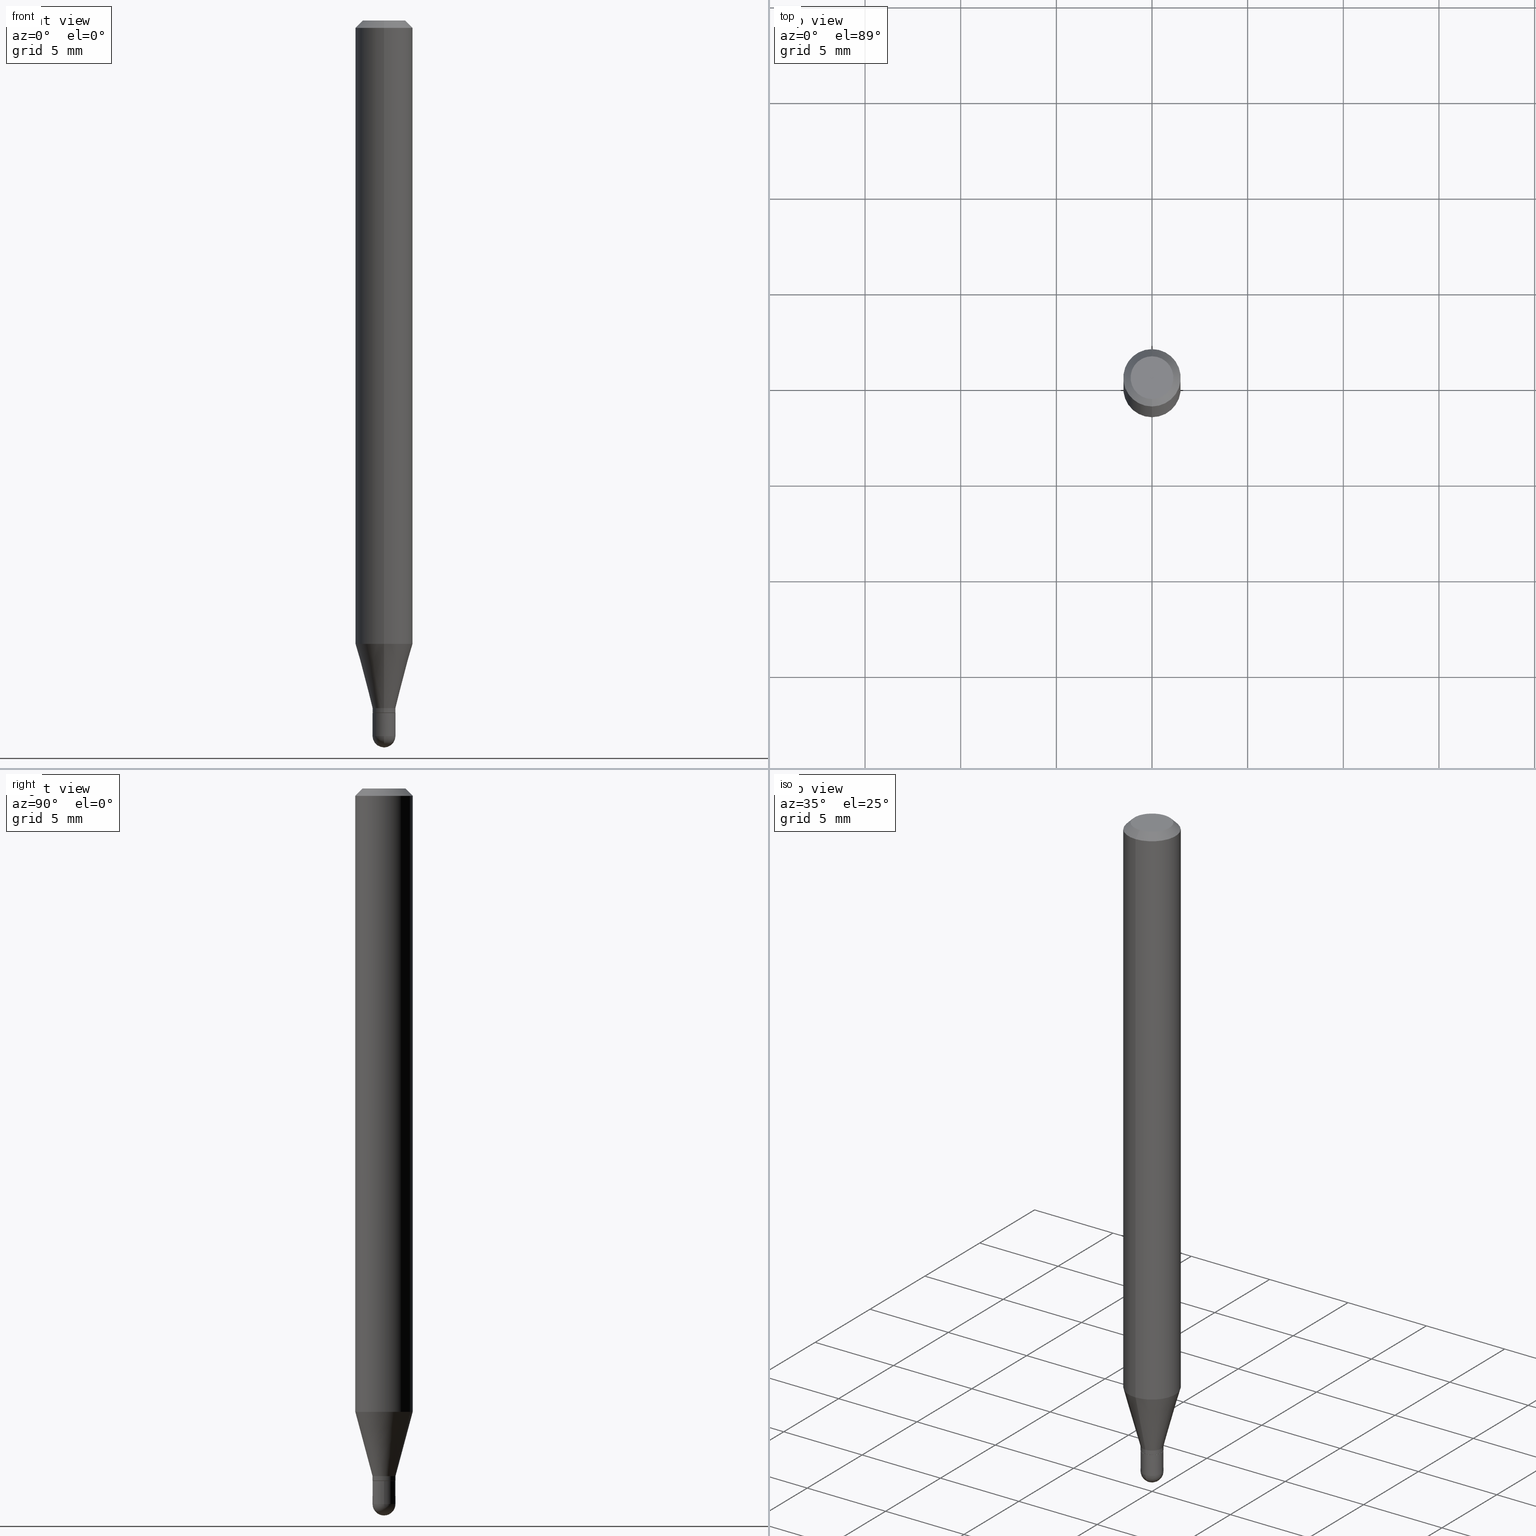
[diagram: canonical four-view strip — front | top / right | iso, engineering-drawing reading convention]
A machine part, canonical four-view strip (front | top / right | iso — engineering-drawing reading convention). The complete STEP part file that produces these views, byte-faithful:
ISO-10303-21;
HEADER;
FILE_DESCRIPTION (( 'STEP AP203' ),
    '1' );
FILE_NAME ('01907.STEP',
    '2024-03-07T19:43:10',
    ( '' ),
    ( '' ),
    'SwSTEP 2.0',
    'SolidWorks 2023',
    '' );
FILE_SCHEMA (( 'CONFIG_CONTROL_DESIGN' ));
ENDSEC;

DATA;
#1 = DIRECTION ( 'NONE',  ( 1.000000000000000000, -6.982962677686258033E-15, 0.000000000000000000 ) ) ;
#2 = COORDINATED_UNIVERSAL_TIME_OFFSET ( 5, 0, .BEHIND. ) ;
#3 = PRODUCT_RELATED_PRODUCT_CATEGORY ( 'detail', '', ( #159 ) ) ;
#4 = LINE ( 'NONE', #42, #8 ) ;
#5 = DIRECTION ( 'NONE',  ( -4.937700262164695559E-15, -0.7071067811865662245, 0.7071067811865289210 ) ) ;
#6 = FACE_OUTER_BOUND ( 'NONE', #478, .T. ) ;
#7 = COORDINATED_UNIVERSAL_TIME_OFFSET ( 5, 0, .BEHIND. ) ;
#8 = VECTOR ( 'NONE', #47, 39.37007874015748143 ) ;
#9 = PRODUCT_DEFINITION_SHAPE ( 'NONE', 'NONE',  #389 ) ;
#10 = CONICAL_SURFACE ( 'NONE', #197, 0.02359999999999991965, 0.2617993877991507401 ) ;
#11 = CARTESIAN_POINT ( 'NONE',  ( -1.647979191933606997E-16, -0.02360000000000486362, -1.415099999999999802 ) ) ;
#12 = LOCAL_TIME ( 14, 43, 10.00000000000000000, #2 ) ;
#13 = EDGE_CURVE ( 'NONE', #252, #438, #168, .T. ) ;
#14 = CARTESIAN_POINT ( 'NONE',  ( 4.195754854663702585E-16, 0.05904999999999548110, -1.282798798871683799 ) ) ;
#15 = DIRECTION ( 'NONE',  ( -2.445468806185136597E-29, 3.491481338843145583E-15, 1.000000000000000000 ) ) ;
#16 = EDGE_LOOP ( 'NONE', ( #445, #418, #125, #508 ) ) ;
#17 = CYLINDRICAL_SURFACE ( 'NONE', #20, 0.05904999999999999832 ) ;
#18 = ORIENTED_EDGE ( 'NONE', *, *, #426, .F. ) ;
#19 = PLANE ( 'NONE',  #238 ) ;
#20 = AXIS2_PLACEMENT_3D ( 'NONE', #181, #107, #307 ) ;
#21 = APPROVAL_PERSON_ORGANIZATION ( #430, #136, #441 ) ;
#22 =( LENGTH_UNIT ( ) NAMED_UNIT ( * ) SI_UNIT ( $, .METRE. ) );
#23 = CARTESIAN_POINT ( 'NONE',  ( 0.000000000000000000, 0.000000000000000000, 0.000000000000000000 ) ) ;
#24 = DIRECTION ( 'NONE',  ( -2.445409518565941942E-29, 3.491566242088273714E-15, 1.000000000000000000 ) ) ;
#25 = ADVANCED_FACE ( 'NONE', ( #87 ), #410, .T. ) ;
#26 = DIRECTION ( 'NONE',  ( -1.000000000000000000, 6.982962677686265922E-15, -4.883557194083112340E-29 ) ) ;
#27 = CARTESIAN_POINT ( 'NONE',  ( -0.02360000000000000292, -4.890944652143507548E-15, -1.425199999999999800 ) ) ;
#28 = FACE_OUTER_BOUND ( 'NONE', #102, .T. ) ;
#29 = VERTEX_POINT ( 'NONE', #451 ) ;
#30 = DIRECTION ( 'NONE',  ( -2.445409518565941942E-29, 3.491566242088273714E-15, 1.000000000000000000 ) ) ;
#31 = AXIS2_PLACEMENT_3D ( 'NONE', #273, #494, #155 ) ;
#32 = ORIENTED_EDGE ( 'NONE', *, *, #428, .F. ) ;
#33 = CC_DESIGN_DATE_AND_TIME_ASSIGNMENT ( #167, #279, ( #215 ) ) ;
#34 = ORIENTED_EDGE ( 'NONE', *, *, #13, .F. ) ;
#35 = DIRECTION ( 'NONE',  ( 2.438088387897960049E-29, -3.491481338843145188E-15, -1.000000000000000000 ) ) ;
#36 = ADVANCED_FACE ( 'NONE', ( #28 ), #449, .T. ) ;
#37 = AXIS2_PLACEMENT_3D ( 'NONE', #65, #341, #308 ) ;
#38 = AXIS2_PLACEMENT_3D ( 'NONE', #165, #504, #350 ) ;
#39 = CIRCLE ( 'NONE', #111, 0.02359999999999992312 ) ;
#40 = DIRECTION ( 'NONE',  ( 1.000000000000000000, -6.982962677686258033E-15, 0.000000000000000000 ) ) ;
#41 = CARTESIAN_POINT ( 'NONE',  ( 3.600952817107612585E-29, -5.141206271446529958E-15, -1.472499999999999698 ) ) ;
#42 = CARTESIAN_POINT ( 'NONE',  ( 1.676880856393830483E-16, 0.02359999999999991965, -8.240096331328297104E-17 ) ) ;
#43 = EDGE_LOOP ( 'NONE', ( #179, #32, #420, #250 ) ) ;
#44 = APPLICATION_PROTOCOL_DEFINITION ( 'international standard', 'config_control_design', 1994, #53 ) ;
#45 = PERSON_AND_ORGANIZATION ( #203, #59 ) ;
#46 = CONICAL_SURFACE ( 'NONE', #31, 0.05904999999999999832, 0.7853981633974483900 ) ;
#47 = DIRECTION ( 'NONE',  ( -2.445409518565941942E-29, 3.491566242088273714E-15, 1.000000000000000000 ) ) ;
#48 = CARTESIAN_POINT ( 'NONE',  ( 5.834381007434704374E-46, -8.330354328949451490E-32, -2.385850289343828066E-17 ) ) ;
#49 = APPROVAL_DATE_TIME ( #404, #281 ) ;
#50 = CALENDAR_DATE ( 2024, 7, 3 ) ;
#51 = AXIS2_PLACEMENT_3D ( 'NONE', #123, #439, #334 ) ;
#52 = CARTESIAN_POINT ( 'NONE',  ( -0.02360000000000000292, 1.676880856393836646E-16, -1.160868681300157803E-30 ) ) ;
#53 = APPLICATION_CONTEXT ( 'configuration controlled 3d designs of mechanical parts and assemblies' ) ;
#54 = CARTESIAN_POINT ( 'NONE',  ( -4.123439461173739834E-16, -0.05904999999999999832, 2.061769865953125508E-16 ) ) ;
#55 = EDGE_CURVE ( 'NONE', #201, #488, #270, .T. ) ;
#56 = CARTESIAN_POINT ( 'NONE',  ( 2.936317855528941933E-16, 0.02359999999999497916, -1.415099999999999802 ) ) ;
#57 = AXIS2_PLACEMENT_3D ( 'NONE', #266, #186, #416 ) ;
#58 = CIRCLE ( 'NONE', #91, 0.05904999999999999832 ) ;
#59 = ORGANIZATION ( 'UNSPECIFIED', 'UNSPECIFIED', '' ) ;
#60 = DIRECTION ( 'NONE',  ( -6.982962677686265922E-15, -1.000000000000000000, 3.491566242088273319E-15 ) ) ;
#61 = CARTESIAN_POINT ( 'NONE',  ( -0.02360000000000000292, -4.890944652143507548E-15, -1.472499999999999698 ) ) ;
#62 = CARTESIAN_POINT ( 'NONE',  ( 3.485197645860179877E-29, -4.976180208224207340E-15, -1.425199999999999800 ) ) ;
#63 = APPROVAL_ROLE ( '' ) ;
#64 = CARTESIAN_POINT ( 'NONE',  ( 1.676880856394173391E-16, 0.02359999999999487161, -1.424700000000000077 ) ) ;
#65 = CARTESIAN_POINT ( 'NONE',  ( 3.485197645860179877E-29, -4.976180208224207340E-15, -1.425199999999999800 ) ) ;
#66 = ORIENTED_EDGE ( 'NONE', *, *, #200, .T. ) ;
#67 = DIRECTION ( 'NONE',  ( -6.982962677686265922E-15, -1.000000000000000000, 3.505890868245046092E-15 ) ) ;
#68 = VECTOR ( 'NONE', #30, 39.37007874015748143 ) ;
#69 = EDGE_CURVE ( 'NONE', #252, #276, #346, .T. ) ;
#70 = ORIENTED_EDGE ( 'NONE', *, *, #460, .F. ) ;
#71 = DIRECTION ( 'NONE',  ( -2.445409518565941942E-29, 3.491566242088273714E-15, 1.000000000000000000 ) ) ;
#72 = ORIENTED_EDGE ( 'NONE', *, *, #235, .T. ) ;
#73 = APPROVAL_DATE_TIME ( #407, #136 ) ;
#74 = DIRECTION ( 'NONE',  ( -6.982962677686265922E-15, -1.000000000000000000, 0.000000000000000000 ) ) ;
#75 = FACE_OUTER_BOUND ( 'NONE', #391, .T. ) ;
#76 = LINE ( 'NONE', #323, #234 ) ;
#77 = AXIS2_PLACEMENT_3D ( 'NONE', #501, #274, #429 ) ;
#78 = CARTESIAN_POINT ( 'NONE',  ( -1.613064378545178652E-16, -0.02310000000000497419, -1.425199999999999800 ) ) ;
#79 = AXIS2_PLACEMENT_3D ( 'NONE', #100, #249, #284 ) ;
#80 = DIRECTION ( 'NONE',  ( 6.982962677686265922E-15, 1.000000000000000000, -3.491566242088273714E-15 ) ) ;
#81 = DIRECTION ( 'NONE',  ( -2.445409518565941942E-29, 3.491566242088273714E-15, 1.000000000000000000 ) ) ;
#82 = CARTESIAN_POINT ( 'NONE',  ( 3.483974941100896918E-29, -4.974434425103163134E-15, -1.424700000000000077 ) ) ;
#83 = EDGE_CURVE ( 'NONE', #482, #438, #110, .T. ) ;
#84 = DIRECTION ( 'NONE',  ( -2.445409518565941942E-29, 3.491566242088273714E-15, 1.000000000000000000 ) ) ;
#85 = DIRECTION ( 'NONE',  ( -2.445409518565941942E-29, 3.491566242088273714E-15, 1.000000000000000000 ) ) ;
#86 = ORIENTED_EDGE ( 'NONE', *, *, #253, .T. ) ;
#87 = FACE_OUTER_BOUND ( 'NONE', #140, .T. ) ;
#88 = CARTESIAN_POINT ( 'NONE',  ( 3.460499009722664544E-29, -4.940915389179115947E-15, -1.415099999999999802 ) ) ;
#89 = PERSON_AND_ORGANIZATION ( #203, #59 ) ;
#90 = ORIENTED_EDGE ( 'NONE', *, *, #137, .F. ) ;
#91 = AXIS2_PLACEMENT_3D ( 'NONE', #459, #421, #67 ) ;
#92 = VERTEX_POINT ( 'NONE', #432 ) ;
#93 = ADVANCED_FACE ( 'NONE', ( #468 ), #379, .T. ) ;
#94 = CARTESIAN_POINT ( 'NONE',  ( 1.676880856394191140E-16, 0.02359999999999478834, -1.472499999999999698 ) ) ;
#95 = DIRECTION ( 'NONE',  ( -6.982962677686266711E-15, -1.000000000000000000, 0.000000000000000000 ) ) ;
#96 = CARTESIAN_POINT ( 'NONE',  ( -3.536586717851222218E-16, -0.04404999999999999888, 1.299449900705501590E-16 ) ) ;
#97 = ORIENTED_EDGE ( 'NONE', *, *, #69, .F. ) ;
#98 = ORIENTED_EDGE ( 'NONE', *, *, #137, .T. ) ;
#99 = DIRECTION ( 'NONE',  ( -2.445409518565941942E-29, 3.491566242088273714E-15, 1.000000000000000000 ) ) ;
#100 = CARTESIAN_POINT ( 'NONE',  ( 3.600952817107612585E-29, -5.141206271446529958E-15, -1.472499999999999698 ) ) ;
#101 = CARTESIAN_POINT ( 'NONE',  ( 1.647979191934307358E-16, 0.02359999999999502426, -1.425199999999999800 ) ) ;
#102 = EDGE_LOOP ( 'NONE', ( #296, #162, #146, #330 ) ) ;
#103 = CIRCLE ( 'NONE', #260, 0.04404999999999999888 ) ;
#104 = CONICAL_SURFACE ( 'NONE', #292, 0.05904999999999999832, 0.7853981633974483900 ) ;
#105 = ORIENTED_EDGE ( 'NONE', *, *, #169, .T. ) ;
#106 = DIRECTION ( 'NONE',  ( 1.000000000000000000, -6.982962677686258033E-15, 0.000000000000000000 ) ) ;
#107 = DIRECTION ( 'NONE',  ( -2.445409518565941942E-29, 3.491566242088273714E-15, 1.000000000000000000 ) ) ;
#108 = EDGE_LOOP ( 'NONE', ( #344, #352, #18, #70 ) ) ;
#109 = VERTEX_POINT ( 'NONE', #202 ) ;
#110 = CIRCLE ( 'NONE', #183, 0.02359999999999992312 ) ;
#111 = AXIS2_PLACEMENT_3D ( 'NONE', #82, #24, #74 ) ;
#112 = EDGE_CURVE ( 'NONE', #482, #327, #4, .T. ) ;
#113 = DESIGN_CONTEXT ( 'detailed design', #310, 'design' ) ;
#114 = DIRECTION ( 'NONE',  ( 1.000000000000000000, -6.982962677686267499E-15, 4.876176775795935793E-29 ) ) ;
#115 = CONICAL_SURFACE ( 'NONE', #342, 0.02309999999999999554, 0.7853981633974781440 ) ;
#116 = FACE_OUTER_BOUND ( 'NONE', #431, .T. ) ;
#117 = CARTESIAN_POINT ( 'NONE',  ( 1.641353719606179197E-16, 0.02309999999999502035, -1.425199999999999800 ) ) ;
#118 = SECURITY_CLASSIFICATION_LEVEL ( 'unclassified' ) ;
#119 = CC_DESIGN_PERSON_AND_ORGANIZATION_ASSIGNMENT ( #212, #172, ( #215 ) ) ;
#120 = CARTESIAN_POINT ( 'NONE',  ( 1.676880856394176596E-16, 0.02359999999999497916, -1.415099999999999802 ) ) ;
#121 = DIRECTION ( 'NONE',  ( -6.982962677686265922E-15, -1.000000000000000000, 0.000000000000000000 ) ) ;
#122 = CARTESIAN_POINT ( 'NONE',  ( 3.136968393165772495E-29, -4.478976981531755489E-15, -1.282798798871683577 ) ) ;
#123 = CARTESIAN_POINT ( 'NONE',  ( 0.000000000000000000, 0.000000000000000000, 0.000000000000000000 ) ) ;
#124 = AXIS2_PLACEMENT_3D ( 'NONE', #204, #129, #1 ) ;
#125 = ORIENTED_EDGE ( 'NONE', *, *, #13, .T. ) ;
#126 = CALENDAR_DATE ( 2024, 7, 3 ) ;
#127 = ADVANCED_FACE ( 'NONE', ( #158 ), #321, .T. ) ;
#128 = EDGE_CURVE ( 'NONE', #327, #228, #196, .T. ) ;
#129 = DIRECTION ( 'NONE',  ( -2.445468806185136597E-29, 3.491481338843145583E-15, 1.000000000000000000 ) ) ;
#130 = VERTEX_POINT ( 'NONE', #462 ) ;
#131 = CLOSED_SHELL ( 'NONE', ( #265, #331, #405, #25, #93, #236, #151, #336, #286, #218, #408, #377 ) ) ;
#132 = EDGE_LOOP ( 'NONE', ( #338, #495, #187, #34 ) ) ;
#133 = CIRCLE ( 'NONE', #251, 0.04404999999999999888 ) ;
#134 = ADVANCED_FACE ( 'NONE', ( #116 ), #464, .T. ) ;
#135 = PRODUCT_DEFINITION_FORMATION_WITH_SPECIFIED_SOURCE ( 'ANY', '', #159, .NOT_KNOWN. ) ;
#136 = APPROVAL ( #510, 'UNSPECIFIED' ) ;
#137 = EDGE_CURVE ( 'NONE', #228, #92, #454, .T. ) ;
#138 = DIRECTION ( 'NONE',  ( -2.445409518565941942E-29, 3.491566242088273714E-15, 1.000000000000000000 ) ) ;
#139 = EDGE_LOOP ( 'NONE', ( #315, #66, #269, #90 ) ) ;
#140 = EDGE_LOOP ( 'NONE', ( #329, #397, #319, #233 ) ) ;
#141 = EDGE_CURVE ( 'NONE', #438, #221, #399, .T. ) ;
#142 = AXIS2_PLACEMENT_3D ( 'NONE', #316, #71, #240 ) ;
#143 = CARTESIAN_POINT ( 'NONE',  ( 0.02360000000000000292, -5.223430656976285538E-15, -1.472499999999999698 ) ) ;
#144 = CIRCLE ( 'NONE', #395, 0.02359999999999991965 ) ;
#145 = DIRECTION ( 'NONE',  ( -2.445409518565941942E-29, 3.491566242088273714E-15, 1.000000000000000000 ) ) ;
#146 = ORIENTED_EDGE ( 'NONE', *, *, #211, .F. ) ;
#147 = COORDINATED_UNIVERSAL_TIME_OFFSET ( 5, 0, .BEHIND. ) ;
#148 = VERTEX_POINT ( 'NONE', #143 ) ;
#149 = EDGE_LOOP ( 'NONE', ( #393, #230, #255, #223 ) ) ;
#150 = DIRECTION ( 'NONE',  ( -2.445409518565941942E-29, 3.491566242088273714E-15, 1.000000000000000000 ) ) ;
#151 = ADVANCED_FACE ( 'NONE', ( #450 ), #17, .T. ) ;
#152 = CLOSED_SHELL ( 'NONE', ( #301, #134, #194, #36, #127 ) ) ;
#153 = AXIS2_PLACEMENT_3D ( 'NONE', #363, #322, #80 ) ;
#154 = EDGE_CURVE ( 'NONE', #217, #272, #58, .T. ) ;
#155 = DIRECTION ( 'NONE',  ( 6.982962677686265922E-15, 1.000000000000000000, -3.505890868245046092E-15 ) ) ;
#156 = ORIENTED_EDGE ( 'NONE', *, *, #411, .F. ) ;
#157 = UNCERTAINTY_MEASURE_WITH_UNIT (LENGTH_MEASURE( 1.000000000000000082E-05 ), #509, 'distance_accuracy_value', 'NONE');
#158 = FACE_OUTER_BOUND ( 'NONE', #178, .T. ) ;
#159 = PRODUCT ( '01907', '01907', '', ( #166 ) ) ;
#160 = ORIENTED_EDGE ( 'NONE', *, *, #502, .F. ) ;
#161 = CIRCLE ( 'NONE', #444, 0.02309999999999999554 ) ;
#162 = ORIENTED_EDGE ( 'NONE', *, *, #320, .T. ) ;
#163 = PLANE ( 'NONE',  #153 ) ;
#164 = EDGE_CURVE ( 'NONE', #228, #217, #231, .T. ) ;
#165 = CARTESIAN_POINT ( 'NONE',  ( 3.460499009722664544E-29, -4.940915389179115947E-15, -1.415099999999999802 ) ) ;
#166 = MECHANICAL_CONTEXT ( 'NONE', #53, 'mechanical' ) ;
#167 = DATE_AND_TIME ( #126, #198 ) ;
#168 = LINE ( 'NONE', #78, #498 ) ;
#169 = EDGE_CURVE ( 'NONE', #355, #272, #298, .T. ) ;
#170 = ORIENTED_EDGE ( 'NONE', *, *, #237, .T. ) ;
#171 = AXIS2_PLACEMENT_3D ( 'NONE', #317, #199, #114 ) ;
#172 = PERSON_AND_ORGANIZATION_ROLE ( 'classification_officer' ) ;
#173 = AXIS2_PLACEMENT_3D ( 'NONE', #413, #26, #300 ) ;
#174 = CC_DESIGN_PERSON_AND_ORGANIZATION_ASSIGNMENT ( #477, #358, ( #389 ) ) ;
#175 = CALENDAR_DATE ( 2024, 7, 3 ) ;
#176 = FACE_OUTER_BOUND ( 'NONE', #149, .T. ) ;
#177 = FACE_OUTER_BOUND ( 'NONE', #374, .T. ) ;
#178 = EDGE_LOOP ( 'NONE', ( #160, #311, #293, #458, #461 ) ) ;
#179 = ORIENTED_EDGE ( 'NONE', *, *, #169, .F. ) ;
#180 = ORIENTED_EDGE ( 'NONE', *, *, #428, .T. ) ;
#181 = CARTESIAN_POINT ( 'NONE',  ( 0.000000000000000000, 0.000000000000000000, 0.000000000000000000 ) ) ;
#182 = MANIFOLD_SOLID_BREP ( 'Body-Move/Copy2[2]', #131 ) ;
#183 = AXIS2_PLACEMENT_3D ( 'NONE', #422, #387, #268 ) ;
#184 = AXIS2_PLACEMENT_3D ( 'NONE', #337, #485, #497 ) ;
#185 = APPROVAL_PERSON_ORGANIZATION ( #475, #242, #280 ) ;
#186 = DIRECTION ( 'NONE',  ( 1.000000000000000000, -7.105427357601001070E-15, 4.926315508542082329E-29 ) ) ;
#187 = ORIENTED_EDGE ( 'NONE', *, *, #384, .F. ) ;
#188 = CARTESIAN_POINT ( 'NONE',  ( -4.123439461173736383E-16, -0.05905000000000005383, -0.01499999999999981730 ) ) ;
#189 = DIRECTION ( 'NONE',  ( 4.937700262164548042E-15, 0.7071067811865451302, -0.7071067811865499042 ) ) ;
#190 = CC_DESIGN_DATE_AND_TIME_ASSIGNMENT ( #277, #370, ( #389 ) ) ;
#191 = CC_DESIGN_APPROVAL ( #242, ( #135 ) ) ;
#192 = DIMENSIONAL_EXPONENTS ( 1.000000000000000000, 0.000000000000000000, 0.000000000000000000, 0.000000000000000000, 0.000000000000000000, 0.000000000000000000, 0.000000000000000000 ) ;
#193 = DIRECTION ( 'NONE',  ( -2.445409518565941942E-29, 3.491566242088273714E-15, 1.000000000000000000 ) ) ;
#194 = ADVANCED_FACE ( 'NONE', ( #378 ), #19, .F. ) ;
#195 = DIRECTION ( 'NONE',  ( -2.445409518565941942E-29, 3.491566242088273714E-15, 1.000000000000000000 ) ) ;
#196 = LINE ( 'NONE', #120, #367 ) ;
#197 = AXIS2_PLACEMENT_3D ( 'NONE', #88, #99, #396 ) ;
#198 = LOCAL_TIME ( 14, 43, 10.00000000000000000, #362 ) ;
#199 = DIRECTION ( 'NONE',  ( -2.445468806185136597E-29, 3.491481338843145583E-15, 1.000000000000000000 ) ) ;
#200 = EDGE_CURVE ( 'NONE', #327, #221, #144, .T. ) ;
#201 = VERTEX_POINT ( 'NONE', #434 ) ;
#202 = CARTESIAN_POINT ( 'NONE',  ( -1.647979191933593685E-16, -0.02360000000000507178, -1.472499999999999698 ) ) ;
#203 = PERSON ( 'UNSPECIFIED', 'UNSPECIFIED', 'UNSPECIFIED', ('UNSPECIFIED'), ('UNSPECIFIED'), ('UNSPECIFIED') ) ;
#204 = CARTESIAN_POINT ( 'NONE',  ( 3.485282142575056435E-29, -4.976059204119250988E-15, -1.425199999999999800 ) ) ;
#205 = PLANE ( 'NONE',  #325 ) ;
#206 = ORIENTED_EDGE ( 'NONE', *, *, #112, .T. ) ;
#207 = CIRCLE ( 'NONE', #184, 0.02360000000000000292 ) ;
#208 = PERSON_AND_ORGANIZATION_ROLE ( 'creator' ) ;
#209 =( NAMED_UNIT ( * ) PLANE_ANGLE_UNIT ( ) SI_UNIT ( $, .RADIAN. ) );
#210 = APPROVAL_STATUS ( 'not_yet_approved' ) ;
#211 = EDGE_CURVE ( 'NONE', #474, #109, #275, .T. ) ;
#212 = PERSON_AND_ORGANIZATION ( #203, #59 ) ;
#213 = DIRECTION ( 'NONE',  ( -2.445468806185136877E-29, 3.491481338843145188E-15, 1.000000000000000000 ) ) ;
#214 = AXIS2_PLACEMENT_3D ( 'NONE', #496, #150, #312 ) ;
#215 = SECURITY_CLASSIFICATION ( '', '', #118 ) ;
#216 = ORIENTED_EDGE ( 'NONE', *, *, #227, .F. ) ;
#217 = VERTEX_POINT ( 'NONE', #287 ) ;
#218 = ADVANCED_FACE ( 'NONE', ( #177 ), #205, .F. ) ;
#219 = DIRECTION ( 'NONE',  ( -2.445468806185136877E-29, 3.491481338843145188E-15, 1.000000000000000000 ) ) ;
#220 = FACE_OUTER_BOUND ( 'NONE', #239, .T. ) ;
#221 = VERTEX_POINT ( 'NONE', #360 ) ;
#222 = CALENDAR_DATE ( 2024, 7, 3 ) ;
#223 = ORIENTED_EDGE ( 'NONE', *, *, #200, .F. ) ;
#224 = DIRECTION ( 'NONE',  ( -4.851104656540964275E-15, -0.7071067811865500152, -0.7071067811865450192 ) ) ;
#225 = CARTESIAN_POINT ( 'NONE',  ( 3.485197645860179877E-29, -4.976180208224207340E-15, -1.425199999999999800 ) ) ;
#226 = CIRCLE ( 'NONE', #124, 0.02360000000000000292 ) ;
#227 = EDGE_CURVE ( 'NONE', #109, #148, #313, .T. ) ;
#228 = VERTEX_POINT ( 'NONE', #14 ) ;
#229 = CARTESIAN_POINT ( 'NONE',  ( 3.598934624665150371E-29, -5.144096437892519397E-15, -1.472499999999999920 ) ) ;
#230 = ORIENTED_EDGE ( 'NONE', *, *, #83, .T. ) ;
#231 = LINE ( 'NONE', #386, #68 ) ;
#232 = DIRECTION ( 'NONE',  ( 1.000000000000000000, -6.982962677686265133E-15, 4.883557194083112340E-29 ) ) ;
#233 = ORIENTED_EDGE ( 'NONE', *, *, #259, .F. ) ;
#234 = VECTOR ( 'NONE', #213, 39.37007874015748143 ) ;
#235 = EDGE_CURVE ( 'NONE', #267, #130, #226, .T. ) ;
#236 = ADVANCED_FACE ( 'NONE', ( #297 ), #10, .T. ) ;
#237 = EDGE_CURVE ( 'NONE', #488, #474, #427, .T. ) ;
#238 = AXIS2_PLACEMENT_3D ( 'NONE', #101, #35, #353 ) ;
#239 = EDGE_LOOP ( 'NONE', ( #170, #419, #156, #289, #241 ) ) ;
#240 = DIRECTION ( 'NONE',  ( -6.982962677686265922E-15, -1.000000000000000000, 4.626330217890369336E-15 ) ) ;
#241 = ORIENTED_EDGE ( 'NONE', *, *, #246, .T. ) ;
#242 = APPROVAL ( #210, 'UNSPECIFIED' ) ;
#243 = ORIENTED_EDGE ( 'NONE', *, *, #253, .F. ) ;
#244 = DIRECTION ( 'NONE',  ( 5.024295867788211484E-15, 0.7071067811865709984, 0.7071067811865239250 ) ) ;
#245 = CARTESIAN_POINT ( 'NONE',  ( 3.600952817107612585E-29, -5.141206271446529958E-15, -1.472499999999999698 ) ) ;
#246 = EDGE_CURVE ( 'NONE', #148, #488, #305, .T. ) ;
#247 = CONICAL_SURFACE ( 'NONE', #465, 0.02309999999999999554, 0.7853981633974781440 ) ;
#248 = DIRECTION ( 'NONE',  ( -6.982962677686265133E-15, -1.000000000000000000, 3.491566242088273714E-15 ) ) ;
#249 = DIRECTION ( 'NONE',  ( -2.445468806185136597E-29, 3.491481338843145583E-15, 1.000000000000000000 ) ) ;
#250 = ORIENTED_EDGE ( 'NONE', *, *, #154, .T. ) ;
#251 = AXIS2_PLACEMENT_3D ( 'NONE', #48, #84, #248 ) ;
#252 = VERTEX_POINT ( 'NONE', #256 ) ;
#253 = EDGE_CURVE ( 'NONE', #355, #29, #103, .T. ) ;
#254 = DIRECTION ( 'NONE',  ( -6.982962677686265922E-15, -1.000000000000000000, 3.505890868245046092E-15 ) ) ;
#255 = ORIENTED_EDGE ( 'NONE', *, *, #141, .T. ) ;
#256 = CARTESIAN_POINT ( 'NONE',  ( -1.613064378545178652E-16, -0.02310000000000497419, -1.425199999999999800 ) ) ;
#257 = DIRECTION ( 'NONE',  ( -6.982962677686265133E-15, -1.000000000000000000, 3.491566242088273714E-15 ) ) ;
#258 = CYLINDRICAL_SURFACE ( 'NONE', #499, 0.02359999999999991965 ) ;
#259 = EDGE_CURVE ( 'NONE', #92, #272, #406, .T. ) ;
#260 = AXIS2_PLACEMENT_3D ( 'NONE', #414, #85, #257 ) ;
#261 = LOCAL_TIME ( 14, 43, 10.00000000000000000, #7 ) ;
#262 = ORIENTED_EDGE ( 'NONE', *, *, #246, .F. ) ;
#263 = DIRECTION ( 'NONE',  ( -6.982962677686265922E-15, -1.000000000000000000, 0.000000000000000000 ) ) ;
#264 = EDGE_LOOP ( 'NONE', ( #288, #98, #290, #480 ) ) ;
#265 = ADVANCED_FACE ( 'NONE', ( #345 ), #383, .T. ) ;
#266 = CARTESIAN_POINT ( 'NONE',  ( 3.598934624665150371E-29, -5.144096437892519397E-15, -1.472499999999999920 ) ) ;
#267 = VERTEX_POINT ( 'NONE', #27 ) ;
#268 = DIRECTION ( 'NONE',  ( -6.982962677686265922E-15, -1.000000000000000000, 0.000000000000000000 ) ) ;
#269 = ORIENTED_EDGE ( 'NONE', *, *, #460, .T. ) ;
#270 = CIRCLE ( 'NONE', #57, 0.02359999999999986067 ) ;
#271 = AXIS2_PLACEMENT_3D ( 'NONE', #245, #328, #357 ) ;
#272 = VERTEX_POINT ( 'NONE', #188 ) ;
#273 = CARTESIAN_POINT ( 'NONE',  ( 3.668114277848918291E-31, -5.237349363132419125E-17, -0.01500000000000002373 ) ) ;
#274 = DIRECTION ( 'NONE',  ( 1.000000000000000000, -6.982962677686265133E-15, 4.883557194083112340E-29 ) ) ;
#275 = CIRCLE ( 'NONE', #271, 0.02360000000000000292 ) ;
#276 = VERTEX_POINT ( 'NONE', #511 ) ;
#277 = DATE_AND_TIME ( #437, #12 ) ;
#278 = DIRECTION ( 'NONE',  ( 0.000000000000000000, 0.000000000000000000, 1.000000000000000000 ) ) ;
#279 = DATE_TIME_ROLE ( 'classification_date' ) ;
#280 = APPROVAL_ROLE ( '' ) ;
#281 = APPROVAL ( #484, 'UNSPECIFIED' ) ;
#282 = AXIS2_PLACEMENT_3D ( 'NONE', #122, #81, #324 ) ;
#283 = LOCAL_TIME ( 14, 43, 10.00000000000000000, #147 ) ;
#284 = DIRECTION ( 'NONE',  ( 1.000000000000000000, -6.982962677686258033E-15, 0.000000000000000000 ) ) ;
#285 = PERSON_AND_ORGANIZATION_ROLE ( 'design_supplier' ) ;
#286 = ADVANCED_FACE ( 'NONE', ( #75 ), #163, .F. ) ;
#287 = CARTESIAN_POINT ( 'NONE',  ( 4.195754854663707023E-16, 0.05904999999999994975, -0.01500000000000023016 ) ) ;
#288 = ORIENTED_EDGE ( 'NONE', *, *, #164, .F. ) ;
#289 = ORIENTED_EDGE ( 'NONE', *, *, #392, .F. ) ;
#290 = ORIENTED_EDGE ( 'NONE', *, *, #259, .T. ) ;
#291 = FACE_OUTER_BOUND ( 'NONE', #16, .T. ) ;
#292 = AXIS2_PLACEMENT_3D ( 'NONE', #368, #340, #491 ) ;
#293 = ORIENTED_EDGE ( 'NONE', *, *, #227, .T. ) ;
#294 = ORIENTED_EDGE ( 'NONE', *, *, #349, .F. ) ;
#295 = CARTESIAN_POINT ( 'NONE',  ( 3.668114277848918291E-31, -5.237349363132419125E-17, -0.01500000000000002373 ) ) ;
#296 = ORIENTED_EDGE ( 'NONE', *, *, #55, .F. ) ;
#297 = FACE_OUTER_BOUND ( 'NONE', #139, .T. ) ;
#298 = LINE ( 'NONE', #448, #490 ) ;
#299 = CARTESIAN_POINT ( 'NONE',  ( 4.123439461173743285E-16, 0.05904999999999994975, -0.01500000000000023016 ) ) ;
#300 = DIRECTION ( 'NONE',  ( -6.982962677686265133E-15, -1.000000000000000000, 0.000000000000000000 ) ) ;
#301 = ADVANCED_FACE ( 'NONE', ( #220 ), #376, .T. ) ;
#302 = DIRECTION ( 'NONE',  ( -6.982962677686265133E-15, -1.000000000000000000, 0.000000000000000000 ) ) ;
#303 = DIRECTION ( 'NONE',  ( -2.445468806185136597E-29, 3.491481338843145583E-15, 1.000000000000000000 ) ) ;
#304 = LINE ( 'NONE', #52, #492 ) ;
#305 = CIRCLE ( 'NONE', #79, 0.02360000000000000292 ) ;
#306 = CC_DESIGN_SECURITY_CLASSIFICATION ( #215, ( #135 ) ) ;
#307 = DIRECTION ( 'NONE',  ( -6.982962677686265922E-15, -1.000000000000000000, 3.491566242088273714E-15 ) ) ;
#308 = DIRECTION ( 'NONE',  ( -6.982962677686266711E-15, -1.000000000000000000, 0.000000000000000000 ) ) ;
#309 = EDGE_CURVE ( 'NONE', #272, #217, #394, .T. ) ;
#310 = APPLICATION_CONTEXT ( 'configuration controlled 3d designs of mechanical parts and assemblies' ) ;
#311 = ORIENTED_EDGE ( 'NONE', *, *, #211, .T. ) ;
#312 = DIRECTION ( 'NONE',  ( -6.982962677686265922E-15, -1.000000000000000000, 3.491566242088273319E-15 ) ) ;
#313 = CIRCLE ( 'NONE', #415, 0.02360000000000000292 ) ;
#314 = CC_DESIGN_PERSON_AND_ORGANIZATION_ASSIGNMENT ( #45, #208, ( #135 ) ) ;
#315 = ORIENTED_EDGE ( 'NONE', *, *, #128, .F. ) ;
#316 = CARTESIAN_POINT ( 'NONE',  ( 3.136968393165772495E-29, -4.478976981531755489E-15, -1.282798798871683577 ) ) ;
#317 = CARTESIAN_POINT ( 'NONE',  ( 0.000000000000000000, 0.000000000000000000, 0.000000000000000000 ) ) ;
#318 = LINE ( 'NONE', #11, #424 ) ;
#319 = ORIENTED_EDGE ( 'NONE', *, *, #309, .F. ) ;
#320 = EDGE_CURVE ( 'NONE', #201, #109, #402, .T. ) ;
#321 = CYLINDRICAL_SURFACE ( 'NONE', #171, 0.02360000000000000292 ) ;
#322 = DIRECTION ( 'NONE',  ( 2.445409518565941942E-29, -3.491566242088273714E-15, -1.000000000000000000 ) ) ;
#323 = CARTESIAN_POINT ( 'NONE',  ( 0.02360000000000000292, -1.647979191933959273E-16, 1.150777719087840955E-30 ) ) ;
#324 = DIRECTION ( 'NONE',  ( -6.982962677686265922E-15, -1.000000000000000000, 4.626330217890369336E-15 ) ) ;
#325 = AXIS2_PLACEMENT_3D ( 'NONE', #332, #400, #479 ) ;
#326 = DIRECTION ( 'NONE',  ( -1.807323732225332900E-15, -0.2588190451025185745, 0.9659258262890687563 ) ) ;
#327 = VERTEX_POINT ( 'NONE', #56 ) ;
#328 = DIRECTION ( 'NONE',  ( -2.445468806185136597E-29, 3.491481338843145583E-15, 1.000000000000000000 ) ) ;
#329 = ORIENTED_EDGE ( 'NONE', *, *, #426, .T. ) ;
#330 = ORIENTED_EDGE ( 'NONE', *, *, #237, .F. ) ;
#331 = ADVANCED_FACE ( 'NONE', ( #452 ), #115, .T. ) ;
#332 = CARTESIAN_POINT ( 'NONE',  ( 3.485197645860179877E-29, -4.976180208224207340E-15, -1.425199999999999800 ) ) ;
#333 = AXIS2_PLACEMENT_3D ( 'NONE', #295, #446, #254 ) ;
#334 = DIRECTION ( 'NONE',  ( -6.982962677686265922E-15, -1.000000000000000000, 3.491566242088273714E-15 ) ) ;
#335 = CARTESIAN_POINT ( 'NONE',  ( 0.000000000000000000, 0.000000000000000000, 0.000000000000000000 ) ) ;
#336 = ADVANCED_FACE ( 'NONE', ( #500 ), #46, .T. ) ;
#337 = CARTESIAN_POINT ( 'NONE',  ( 3.485282142575056435E-29, -4.976059204119250988E-15, -1.425199999999999800 ) ) ;
#338 = ORIENTED_EDGE ( 'NONE', *, *, #69, .T. ) ;
#339 = DIRECTION ( 'NONE',  ( -2.445409518565941942E-29, 3.491566242088273714E-15, 1.000000000000000000 ) ) ;
#340 = DIRECTION ( 'NONE',  ( 2.445409518565941942E-29, -3.491566242088273714E-15, -1.000000000000000000 ) ) ;
#341 = DIRECTION ( 'NONE',  ( -2.445409518565941942E-29, 3.491566242088273714E-15, 1.000000000000000000 ) ) ;
#342 = AXIS2_PLACEMENT_3D ( 'NONE', #62, #195, #347 ) ;
#343 = MANIFOLD_SOLID_BREP ( 'Body-Move/Copy2[1]', #152 ) ;
#344 = ORIENTED_EDGE ( 'NONE', *, *, #349, .T. ) ;
#345 = FACE_OUTER_BOUND ( 'NONE', #493, .T. ) ;
#346 = CIRCLE ( 'NONE', #37, 0.02309999999999999554 ) ;
#347 = DIRECTION ( 'NONE',  ( -6.982962677686266711E-15, -1.000000000000000000, 0.000000000000000000 ) ) ;
#348 = CIRCLE ( 'NONE', #388, 0.02359999999999991965 ) ;
#349 = EDGE_CURVE ( 'NONE', #221, #327, #348, .T. ) ;
#350 = DIRECTION ( 'NONE',  ( -6.982962677686265922E-15, -1.000000000000000000, 0.000000000000000000 ) ) ;
#351 = VECTOR ( 'NONE', #189, 39.37007874015748143 ) ;
#352 = ORIENTED_EDGE ( 'NONE', *, *, #128, .T. ) ;
#353 = DIRECTION ( 'NONE',  ( -1.000000000000000000, 6.982962677686265922E-15, -4.876176775795935793E-29 ) ) ;
#354 = CARTESIAN_POINT ( 'NONE',  ( 3.600952817107612585E-29, -5.141206271446529958E-15, -1.472499999999999698 ) ) ;
#355 = VERTEX_POINT ( 'NONE', #96 ) ;
#356 = CARTESIAN_POINT ( 'NONE',  ( -1.647979191933953110E-16, -0.02359999999999991965, 8.240096331328297104E-17 ) ) ;
#357 = DIRECTION ( 'NONE',  ( 1.000000000000000000, -6.982962677686258033E-15, 0.000000000000000000 ) ) ;
#358 = PERSON_AND_ORGANIZATION_ROLE ( 'creator' ) ;
#359 = CIRCLE ( 'NONE', #282, 0.05904999999999999832 ) ;
#360 = CARTESIAN_POINT ( 'NONE',  ( -1.647979191933606997E-16, -0.02360000000000486362, -1.415099999999999802 ) ) ;
#361 = AXIS2_PLACEMENT_3D ( 'NONE', #505, #278, #503 ) ;
#362 = COORDINATED_UNIVERSAL_TIME_OFFSET ( 5, 0, .BEHIND. ) ;
#363 = CARTESIAN_POINT ( 'NONE',  ( 3.075995059520799729E-16, 0.04404999999999999888, -1.657327444107075985E-16 ) ) ;
#364 = DIRECTION ( 'NONE',  ( 1.839019923739603471E-15, 0.2588190451025254024, 0.9659258262890670910 ) ) ;
#365 = SHAPE_DEFINITION_REPRESENTATION ( #9, #455 ) ;
#366 = APPROVAL_DATE_TIME ( #403, #242 ) ;
#367 = VECTOR ( 'NONE', #364, 39.37007874015748143 ) ;
#368 = CARTESIAN_POINT ( 'NONE',  ( 3.668114277848918291E-31, -5.237349363132419125E-17, -0.01500000000000002373 ) ) ;
#369 = LENGTH_MEASURE_WITH_UNIT ( LENGTH_MEASURE( 0.02539999999999999897 ), #22 );
#370 = DATE_TIME_ROLE ( 'creation_date' ) ;
#371 = PERSON_AND_ORGANIZATION_ROLE ( 'design_owner' ) ;
#372 = DIRECTION ( 'NONE',  ( 1.000000000000000000, -6.982962677686267499E-15, 4.876176775795935793E-29 ) ) ;
#373 = ORIENTED_EDGE ( 'NONE', *, *, #384, .T. ) ;
#374 = EDGE_LOOP ( 'NONE', ( #97, #443 ) ) ;
#375 = LINE ( 'NONE', #299, #351 ) ;
#376 = CYLINDRICAL_SURFACE ( 'NONE', #436, 0.02360000000000000292 ) ;
#377 = ADVANCED_FACE ( 'NONE', ( #176 ), #258, .T. ) ;
#378 = FACE_OUTER_BOUND ( 'NONE', #487, .T. ) ;
#379 = CONICAL_SURFACE ( 'NONE', #38, 0.02359999999999991965, 0.2617993877991507401 ) ;
#380 = VECTOR ( 'NONE', #193, 39.37007874015748143 ) ;
#381 = EDGE_CURVE ( 'NONE', #276, #252, #161, .T. ) ;
#382 = CARTESIAN_POINT ( 'NONE',  ( 3.485197645860179877E-29, -4.976180208224207340E-15, -1.425199999999999800 ) ) ;
#383 = CYLINDRICAL_SURFACE ( 'NONE', #214, 0.02359999999999991965 ) ;
#384 = EDGE_CURVE ( 'NONE', #438, #482, #39, .T. ) ;
#385 = ORIENTED_EDGE ( 'NONE', *, *, #309, .T. ) ;
#386 = CARTESIAN_POINT ( 'NONE',  ( 4.195754854663390985E-16, 0.05904999999999999832, -2.061769865953125508E-16 ) ) ;
#387 = DIRECTION ( 'NONE',  ( -2.445409518565941942E-29, 3.491566242088273714E-15, 1.000000000000000000 ) ) ;
#388 = AXIS2_PLACEMENT_3D ( 'NONE', #412, #486, #263 ) ;
#389 = PRODUCT_DEFINITION ( 'UNKNOWN', '', #135, #113 ) ;
#390 = ORIENTED_EDGE ( 'NONE', *, *, #320, .F. ) ;
#391 = EDGE_LOOP ( 'NONE', ( #180, #86 ) ) ;
#392 = EDGE_CURVE ( 'NONE', #148, #130, #76, .T. ) ;
#393 = ORIENTED_EDGE ( 'NONE', *, *, #112, .F. ) ;
#394 = CIRCLE ( 'NONE', #333, 0.05904999999999999832 ) ;
#395 = AXIS2_PLACEMENT_3D ( 'NONE', #471, #467, #121 ) ;
#396 = DIRECTION ( 'NONE',  ( -6.982962677686265922E-15, -1.000000000000000000, 0.000000000000000000 ) ) ;
#397 = ORIENTED_EDGE ( 'NONE', *, *, #164, .T. ) ;
#398 =( NAMED_UNIT ( * ) SI_UNIT ( $, .STERADIAN. ) SOLID_ANGLE_UNIT ( ) );
#399 = LINE ( 'NONE', #356, #489 ) ;
#400 = DIRECTION ( 'NONE',  ( -2.445409518565941942E-29, 3.491566242088273714E-15, 1.000000000000000000 ) ) ;
#401 = PERSON_AND_ORGANIZATION ( #203, #59 ) ;
#402 = CIRCLE ( 'NONE', #173, 0.02359999999999986067 ) ;
#403 = DATE_AND_TIME ( #50, #261 ) ;
#404 = DATE_AND_TIME ( #222, #283 ) ;
#405 = ADVANCED_FACE ( 'NONE', ( #6 ), #104, .T. ) ;
#406 = LINE ( 'NONE', #54, #380 ) ;
#407 = DATE_AND_TIME ( #175, #512 ) ;
#408 = ADVANCED_FACE ( 'NONE', ( #291 ), #247, .T. ) ;
#409 = APPROVAL_PERSON_ORGANIZATION ( #89, #281, #63 ) ;
#410 = CYLINDRICAL_SURFACE ( 'NONE', #51, 0.05904999999999999832 ) ;
#411 = EDGE_CURVE ( 'NONE', #130, #267, #207, .T. ) ;
#412 = CARTESIAN_POINT ( 'NONE',  ( 3.460499009722664544E-29, -4.940915389179115947E-15, -1.415099999999999802 ) ) ;
#413 = CARTESIAN_POINT ( 'NONE',  ( 3.598934624665150371E-29, -5.144096437892519397E-15, -1.472499999999999920 ) ) ;
#414 = CARTESIAN_POINT ( 'NONE',  ( 5.834381007434704374E-46, -8.330354328949451490E-32, -2.385850289343828066E-17 ) ) ;
#415 = AXIS2_PLACEMENT_3D ( 'NONE', #41, #507, #40 ) ;
#416 = DIRECTION ( 'NONE',  ( 7.105427357601001070E-15, 1.000000000000000000, 0.000000000000000000 ) ) ;
#417 =( GEOMETRIC_REPRESENTATION_CONTEXT ( 3 ) GLOBAL_UNCERTAINTY_ASSIGNED_CONTEXT ( ( #157 ) ) GLOBAL_UNIT_ASSIGNED_CONTEXT ( ( #509, #209, #398 ) ) REPRESENTATION_CONTEXT ( 'NONE', 'WORKASPACE' ) );
#418 = ORIENTED_EDGE ( 'NONE', *, *, #381, .T. ) ;
#419 = ORIENTED_EDGE ( 'NONE', *, *, #502, .T. ) ;
#420 = ORIENTED_EDGE ( 'NONE', *, *, #476, .T. ) ;
#421 = DIRECTION ( 'NONE',  ( -2.445409518565941942E-29, 3.491566242088273714E-15, 1.000000000000000000 ) ) ;
#422 = CARTESIAN_POINT ( 'NONE',  ( 3.483974941100896918E-29, -4.974434425103163134E-15, -1.424700000000000077 ) ) ;
#423 = AXIS2_PLACEMENT_3D ( 'NONE', #229, #232, #302 ) ;
#424 = VECTOR ( 'NONE', #326, 39.37007874015748854 ) ;
#425 = ORIENTED_EDGE ( 'NONE', *, *, #411, .T. ) ;
#426 = EDGE_CURVE ( 'NONE', #92, #228, #359, .T. ) ;
#427 = CIRCLE ( 'NONE', #472, 0.02360000000000000292 ) ;
#428 = EDGE_CURVE ( 'NONE', #29, #355, #133, .T. ) ;
#429 = DIRECTION ( 'NONE',  ( -6.982962677686265133E-15, -1.000000000000000000, 0.000000000000000000 ) ) ;
#430 = PERSON_AND_ORGANIZATION ( #203, #59 ) ;
#431 = EDGE_LOOP ( 'NONE', ( #390, #453, #262, #216 ) ) ;
#432 = CARTESIAN_POINT ( 'NONE',  ( -4.123439461173428234E-16, -0.05905000000000449473, -1.282798798871683355 ) ) ;
#433 = COORDINATED_UNIVERSAL_TIME_OFFSET ( 5, 0, .BEHIND. ) ;
#434 = CARTESIAN_POINT ( 'NONE',  ( 3.655638592269887387E-29, -5.227940480712210662E-15, -1.496099999999999985 ) ) ;
#435 = CC_DESIGN_PERSON_AND_ORGANIZATION_ASSIGNMENT ( #481, #371, ( #159 ) ) ;
#436 = AXIS2_PLACEMENT_3D ( 'NONE', #335, #15, #372 ) ;
#437 = CALENDAR_DATE ( 2024, 7, 3 ) ;
#438 = VERTEX_POINT ( 'NONE', #469 ) ;
#439 = DIRECTION ( 'NONE',  ( -2.445409518565941942E-29, 3.491566242088273714E-15, 1.000000000000000000 ) ) ;
#440 = DIRECTION ( 'NONE',  ( -6.982962677686266711E-15, -1.000000000000000000, 0.000000000000000000 ) ) ;
#441 = APPROVAL_ROLE ( '' ) ;
#442 = APPLICATION_PROTOCOL_DEFINITION ( 'international standard', 'config_control_design', 1994, #310 ) ;
#443 = ORIENTED_EDGE ( 'NONE', *, *, #381, .F. ) ;
#444 = AXIS2_PLACEMENT_3D ( 'NONE', #382, #339, #440 ) ;
#445 = ORIENTED_EDGE ( 'NONE', *, *, #463, .F. ) ;
#446 = DIRECTION ( 'NONE',  ( -2.445409518565941942E-29, 3.491566242088273714E-15, 1.000000000000000000 ) ) ;
#447 = ORIENTED_EDGE ( 'NONE', *, *, #141, .F. ) ;
#448 = CARTESIAN_POINT ( 'NONE',  ( -4.051124067684085231E-16, -0.05905000000000005383, -0.01499999999999981730 ) ) ;
#449 = SPHERICAL_SURFACE ( 'NONE', #423, 0.02359999999999986067 ) ;
#450 = FACE_OUTER_BOUND ( 'NONE', #264, .T. ) ;
#451 = CARTESIAN_POINT ( 'NONE',  ( 3.599717260347271507E-16, 0.04404999999999999888, -1.776619958574267204E-16 ) ) ;
#452 = FACE_OUTER_BOUND ( 'NONE', #132, .T. ) ;
#453 = ORIENTED_EDGE ( 'NONE', *, *, #55, .T. ) ;
#454 = CIRCLE ( 'NONE', #142, 0.05904999999999999832 ) ;
#455 = ADVANCED_BREP_SHAPE_REPRESENTATION ( '01907', ( #343, #182, #361 ), #417 ) ;
#456 = CC_DESIGN_APPROVAL ( #136, ( #215 ) ) ;
#457 = CC_DESIGN_PERSON_AND_ORGANIZATION_ASSIGNMENT ( #401, #285, ( #135 ) ) ;
#458 = ORIENTED_EDGE ( 'NONE', *, *, #392, .T. ) ;
#459 = CARTESIAN_POINT ( 'NONE',  ( 3.668114277848918291E-31, -5.237349363132419125E-17, -0.01500000000000002373 ) ) ;
#460 = EDGE_CURVE ( 'NONE', #221, #92, #318, .T. ) ;
#461 = ORIENTED_EDGE ( 'NONE', *, *, #235, .F. ) ;
#462 = CARTESIAN_POINT ( 'NONE',  ( 0.02360000000000000292, -5.140857123312646447E-15, -1.425199999999999800 ) ) ;
#463 = EDGE_CURVE ( 'NONE', #276, #482, #466, .T. ) ;
#464 = SPHERICAL_SURFACE ( 'NONE', #77, 0.02359999999999986067 ) ;
#465 = AXIS2_PLACEMENT_3D ( 'NONE', #225, #145, #95 ) ;
#466 = LINE ( 'NONE', #117, #483 ) ;
#467 = DIRECTION ( 'NONE',  ( -2.445409518565941942E-29, 3.491566242088273714E-15, 1.000000000000000000 ) ) ;
#468 = FACE_OUTER_BOUND ( 'NONE', #108, .T. ) ;
#469 = CARTESIAN_POINT ( 'NONE',  ( -1.647979191933610942E-16, -0.02360000000000497811, -1.424700000000000077 ) ) ;
#470 = ORIENTED_EDGE ( 'NONE', *, *, #476, .F. ) ;
#471 = CARTESIAN_POINT ( 'NONE',  ( 3.460499009722664544E-29, -4.940915389179115947E-15, -1.415099999999999802 ) ) ;
#472 = AXIS2_PLACEMENT_3D ( 'NONE', #354, #303, #106 ) ;
#473 = CC_DESIGN_APPROVAL ( #281, ( #389 ) ) ;
#474 = VERTEX_POINT ( 'NONE', #61 ) ;
#475 = PERSON_AND_ORGANIZATION ( #203, #59 ) ;
#476 = EDGE_CURVE ( 'NONE', #29, #217, #375, .T. ) ;
#477 = PERSON_AND_ORGANIZATION ( #203, #59 ) ;
#478 = EDGE_LOOP ( 'NONE', ( #243, #105, #385, #470 ) ) ;
#479 = DIRECTION ( 'NONE',  ( -6.982962677686265922E-15, -1.000000000000000000, 3.491566242088273714E-15 ) ) ;
#480 = ORIENTED_EDGE ( 'NONE', *, *, #154, .F. ) ;
#481 = PERSON_AND_ORGANIZATION ( #203, #59 ) ;
#482 = VERTEX_POINT ( 'NONE', #64 ) ;
#483 = VECTOR ( 'NONE', #244, 39.37007874015748854 ) ;
#484 = APPROVAL_STATUS ( 'not_yet_approved' ) ;
#485 = DIRECTION ( 'NONE',  ( -2.445468806185136597E-29, 3.491481338843145583E-15, 1.000000000000000000 ) ) ;
#486 = DIRECTION ( 'NONE',  ( -2.445409518565941942E-29, 3.491566242088273714E-15, 1.000000000000000000 ) ) ;
#487 = EDGE_LOOP ( 'NONE', ( #425, #72 ) ) ;
#488 = VERTEX_POINT ( 'NONE', #94 ) ;
#489 = VECTOR ( 'NONE', #506, 39.37007874015748143 ) ;
#490 = VECTOR ( 'NONE', #224, 39.37007874015748143 ) ;
#491 = DIRECTION ( 'NONE',  ( 6.982962677686265922E-15, 1.000000000000000000, -3.505890868245046092E-15 ) ) ;
#492 = VECTOR ( 'NONE', #219, 39.37007874015748143 ) ;
#493 = EDGE_LOOP ( 'NONE', ( #373, #206, #294, #447 ) ) ;
#494 = DIRECTION ( 'NONE',  ( 2.445409518565941942E-29, -3.491566242088273714E-15, -1.000000000000000000 ) ) ;
#495 = ORIENTED_EDGE ( 'NONE', *, *, #463, .T. ) ;
#496 = CARTESIAN_POINT ( 'NONE',  ( 0.000000000000000000, 0.000000000000000000, 0.000000000000000000 ) ) ;
#497 = DIRECTION ( 'NONE',  ( 1.000000000000000000, -6.982962677686258033E-15, 0.000000000000000000 ) ) ;
#498 = VECTOR ( 'NONE', #5, 39.37007874015748143 ) ;
#499 = AXIS2_PLACEMENT_3D ( 'NONE', #23, #138, #60 ) ;
#500 = FACE_OUTER_BOUND ( 'NONE', #43, .T. ) ;
#501 = CARTESIAN_POINT ( 'NONE',  ( 3.598934624665150371E-29, -5.144096437892519397E-15, -1.472499999999999920 ) ) ;
#502 = EDGE_CURVE ( 'NONE', #474, #267, #304, .T. ) ;
#503 = DIRECTION ( 'NONE',  ( 1.000000000000000000, 0.000000000000000000, 0.000000000000000000 ) ) ;
#504 = DIRECTION ( 'NONE',  ( -2.445409518565941942E-29, 3.491566242088273714E-15, 1.000000000000000000 ) ) ;
#505 = CARTESIAN_POINT ( 'NONE',  ( 0.000000000000000000, 0.000000000000000000, 0.000000000000000000 ) ) ;
#506 = DIRECTION ( 'NONE',  ( -2.445409518565941942E-29, 3.491566242088273714E-15, 1.000000000000000000 ) ) ;
#507 = DIRECTION ( 'NONE',  ( -2.445468806185136597E-29, 3.491481338843145583E-15, 1.000000000000000000 ) ) ;
#508 = ORIENTED_EDGE ( 'NONE', *, *, #83, .F. ) ;
#509 =( CONVERSION_BASED_UNIT ( 'INCH', #369 ) LENGTH_UNIT ( ) NAMED_UNIT ( #192 ) );
#510 = APPROVAL_STATUS ( 'not_yet_approved' ) ;
#511 = CARTESIAN_POINT ( 'NONE',  ( 1.659117288000179252E-16, 0.02309999999999502035, -1.425199999999999800 ) ) ;
#512 = LOCAL_TIME ( 14, 43, 10.00000000000000000, #433 ) ;
ENDSEC;
END-ISO-10303-21;
